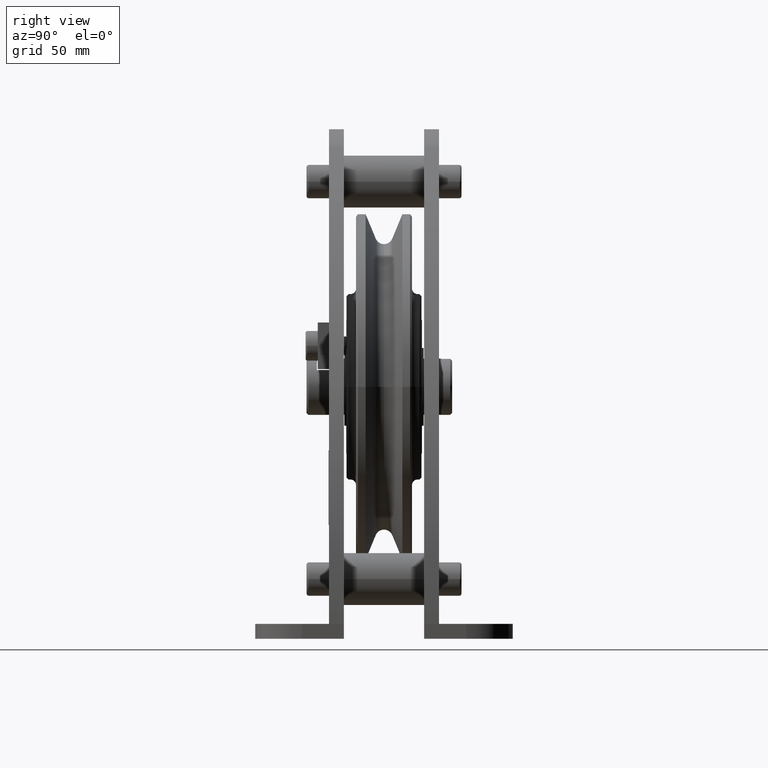
[diagram: clean part render]
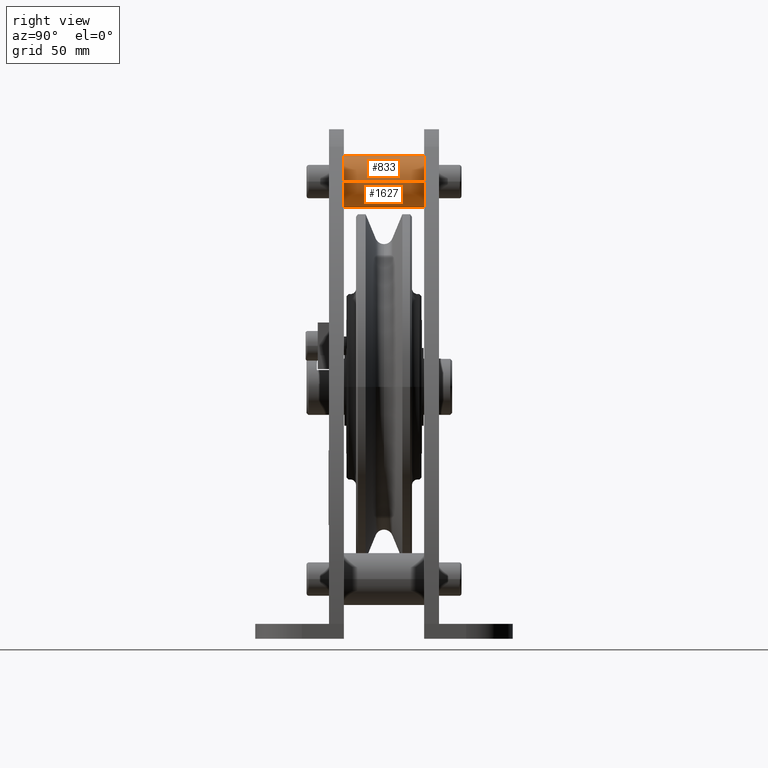
[diagram: same view with one multi-face feature highlighted, each face labeled with its STEP entity id]
A machine part, right view. The highlighted faces form ONE feature: a constant-radius fillet chain: 2 tangent blend faces with common blend radius 14 mm. The faces share edges in the B-rep.
Their STEP definitions:
[1] entity #1627 (Cylinder):
#1627=ADVANCED_FACE('',(#3495),#3496,.T.);
#3495=FACE_OUTER_BOUND('',#5581,.T.);
#3496=CYLINDRICAL_SURFACE('',#5582,14.0);
#5581=EDGE_LOOP('',(#10696,#10697,#10698,#10699));
#5582=AXIS2_PLACEMENT_3D('',#10700,#10701,#10702);
#10696=ORIENTED_EDGE('',*,*,#12791,.T.);
#10697=ORIENTED_EDGE('',*,*,#14226,.F.);
#10698=ORIENTED_EDGE('',*,*,#12793,.T.);
#10699=ORIENTED_EDGE('',*,*,#14144,.F.);
#10700=CARTESIAN_POINT('',(0.0,0.0,110.0));
#10701=DIRECTION('',(0.0,-1.0,0.0));
#10702=DIRECTION('',(1.0,0.0,0.0));
#12791=EDGE_CURVE('',#15519,#15520,#15521,.T.);
#12793=EDGE_CURVE('',#15524,#15522,#15525,.T.);
#14144=EDGE_CURVE('',#15519,#15522,#17530,.T.);
#14226=EDGE_CURVE('',#15524,#15520,#17647,.T.);
#15519=VERTEX_POINT('',#21931);
#15520=VERTEX_POINT('',#21932);
#15521=LINE('',#21933,#21934);
#15522=VERTEX_POINT('',#21935);
#15524=VERTEX_POINT('',#21937);
#15525=LINE('',#21938,#21939);
#17530=CIRCLE('',#24844,14.0);
#17647=CIRCLE('',#24997,14.0);
#21931=CARTESIAN_POINT('',(14.0,21.5,110.0));
#21932=CARTESIAN_POINT('',(14.0,-21.5,110.0));
#21933=CARTESIAN_POINT('',(14.0,0.0,110.0));
#21934=VECTOR('',#27482,1.0);
#21935=CARTESIAN_POINT('',(-14.0,21.5,110.0));
#21937=CARTESIAN_POINT('',(-14.0,-21.5,110.0));
#21938=CARTESIAN_POINT('',(-14.0,0.0,110.0));
#21939=VECTOR('',#27486,1.0);
#24844=AXIS2_PLACEMENT_3D('',#29044,#29045,#29046);
#24997=AXIS2_PLACEMENT_3D('',#29155,#29156,#29157);
#27482=DIRECTION('',(0.0,-1.0,0.0));
#27486=DIRECTION('',(-0.0,1.0,-0.0));
#29044=CARTESIAN_POINT('',(0.0,21.5,110.0));
#29045=DIRECTION('',(-0.0,1.0,0.0));
#29046=DIRECTION('',(1.0,0.0,0.0));
#29155=CARTESIAN_POINT('',(0.0,-21.5,110.0));
#29156=DIRECTION('',(0.0,-1.0,0.0));
#29157=DIRECTION('',(1.0,0.0,0.0));
[2] entity #833 (Cylinder):
#833=ADVANCED_FACE('',(#2248),#2249,.T.);
#2248=FACE_OUTER_BOUND('',#4334,.T.);
#2249=CYLINDRICAL_SURFACE('',#4335,14.0);
#4334=EDGE_LOOP('',(#6909,#6910,#6911,#6912));
#4335=AXIS2_PLACEMENT_3D('',#6913,#6914,#6915);
#6909=ORIENTED_EDGE('',*,*,#12791,.F.);
#6910=ORIENTED_EDGE('',*,*,#12792,.F.);
#6911=ORIENTED_EDGE('',*,*,#12793,.F.);
#6912=ORIENTED_EDGE('',*,*,#12794,.F.);
#6913=CARTESIAN_POINT('',(0.0,0.0,110.0));
#6914=DIRECTION('',(0.0,-1.0,0.0));
#6915=DIRECTION('',(1.0,0.0,0.0));
#12791=EDGE_CURVE('',#15519,#15520,#15521,.T.);
#12792=EDGE_CURVE('',#15522,#15519,#15523,.T.);
#12793=EDGE_CURVE('',#15524,#15522,#15525,.T.);
#12794=EDGE_CURVE('',#15520,#15524,#15526,.T.);
#15519=VERTEX_POINT('',#21931);
#15520=VERTEX_POINT('',#21932);
#15521=LINE('',#21933,#21934);
#15522=VERTEX_POINT('',#21935);
#15523=CIRCLE('',#21936,14.0);
#15524=VERTEX_POINT('',#21937);
#15525=LINE('',#21938,#21939);
#15526=CIRCLE('',#21940,14.0);
#21931=CARTESIAN_POINT('',(14.0,21.5,110.0));
#21932=CARTESIAN_POINT('',(14.0,-21.5,110.0));
#21933=CARTESIAN_POINT('',(14.0,0.0,110.0));
#21934=VECTOR('',#27482,1.0);
#21935=CARTESIAN_POINT('',(-14.0,21.5,110.0));
#21936=AXIS2_PLACEMENT_3D('',#27483,#27484,#27485);
#21937=CARTESIAN_POINT('',(-14.0,-21.5,110.0));
#21938=CARTESIAN_POINT('',(-14.0,0.0,110.0));
#21939=VECTOR('',#27486,1.0);
#21940=AXIS2_PLACEMENT_3D('',#27487,#27488,#27489);
#27482=DIRECTION('',(0.0,-1.0,0.0));
#27483=CARTESIAN_POINT('',(0.0,21.5,110.0));
#27484=DIRECTION('',(-0.0,1.0,0.0));
#27485=DIRECTION('',(1.0,0.0,0.0));
#27486=DIRECTION('',(-0.0,1.0,-0.0));
#27487=CARTESIAN_POINT('',(0.0,-21.5,110.0));
#27488=DIRECTION('',(0.0,-1.0,0.0));
#27489=DIRECTION('',(1.0,0.0,0.0));